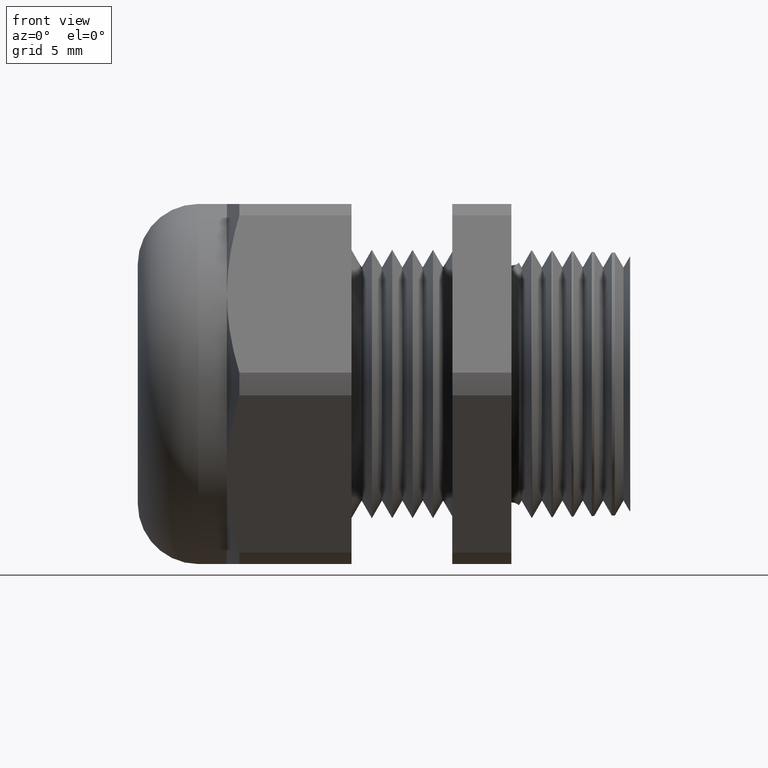
[diagram: clean part render]
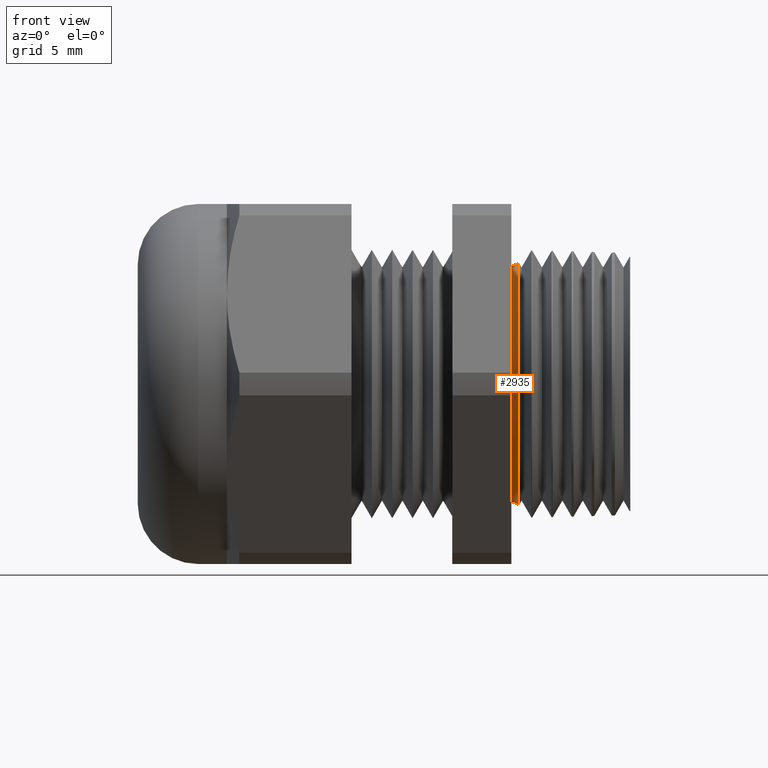
[diagram: same view with one face highlighted and labeled with its STEP entity id]
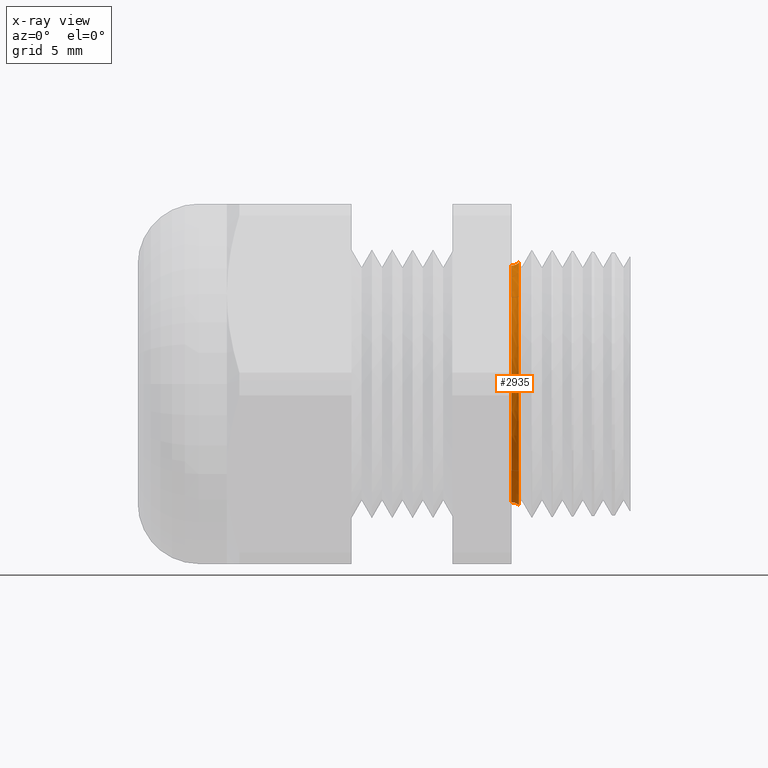
[diagram: x-ray of the same camera — body ghosted, the highlighted face saturated]
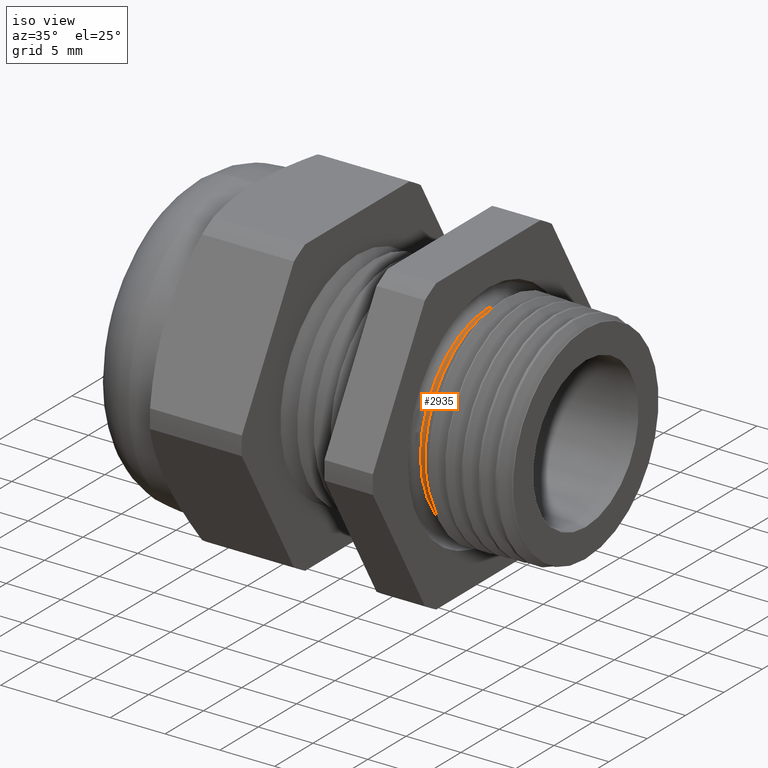
[diagram: same view with one face highlighted and labeled with its STEP entity id]
A machine part, front view. The second image highlights one B-rep face of the part: STEP entity #2935.
The next image is the same camera in x-ray: the body ghosted, the highlighted face saturated — about 0% of this face is hidden behind the body in this view.
A second angle (iso view) of the same face is appended — the face is thin or edge-on in the first view.
In plain terms, the highlighted toroidal blend (fillet) surface has major radius 9.6737 mm and minor (blend) radius 0.8255 mm.
Its self-contained STEP definition (entity closure, byte-faithful):
#1675 = CARTESIAN_POINT ( 'NONE',  ( 0.02198579858692063100, 4.371002984934417600E-017, -0.3569194798024769600 ) ) ;
#1676 = DIRECTION ( 'NONE',  ( 0.0000000000000000000, 0.0000000000000000000, 1.000000000000000000 ) ) ;
#1677 = DIRECTION ( 'NONE',  ( -1.000000000000000000, 0.0000000000000000000, 0.0000000000000000000 ) ) ;
#1678 = CARTESIAN_POINT ( 'NONE',  ( 0.02198579858692063100, 0.0000000000000000000, 0.0000000000000000000 ) ) ;
#1679 = AXIS2_PLACEMENT_3D ( 'NONE', #1678, #1677, #1676 ) ;
#1680 = CIRCLE ( 'NONE', #1679, 0.3569194798024769600 ) ;
#1681 = DIRECTION ( 'NONE',  ( 0.0000000000000000000, 0.0000000000000000000, 1.000000000000000000 ) ) ;
#1682 = DIRECTION ( 'NONE',  ( -1.000000000000000000, 0.0000000000000000000, 0.0000000000000000000 ) ) ;
#1683 = CARTESIAN_POINT ( 'NONE',  ( 3.980102097228894500E-018, 0.0000000000000000000, 0.0000000000000000000 ) ) ;
#1684 = AXIS2_PLACEMENT_3D ( 'NONE', #1683, #1682, #1681 ) ;
#1685 = CIRCLE ( 'NONE', #1684, 0.3483542800000000200 ) ;
#1686 = DIRECTION ( 'NONE',  ( 0.0000000000000000000, -1.224646799147353500E-016, 1.000000000000000000 ) ) ;
#1687 = DIRECTION ( 'NONE',  ( 0.0000000000000000000, 1.000000000000000000, 1.224646799147353200E-016 ) ) ;
#1688 = CARTESIAN_POINT ( 'NONE',  ( 0.0000000000000000000, 4.664119749435698700E-017, -0.3808542800000000500 ) ) ;
#1689 = AXIS2_PLACEMENT_3D ( 'NONE', #1688, #1687, #1686 ) ;
#1690 = CIRCLE ( 'NONE', #1689, 0.03249999999999999400 ) ;
#1691 = DIRECTION ( 'NONE',  ( 0.0000000000000000000, 0.0000000000000000000, 1.000000000000000000 ) ) ;
#1692 = DIRECTION ( 'NONE',  ( -1.000000000000000000, 0.0000000000000000000, 0.0000000000000000000 ) ) ;
#1693 = AXIS2_PLACEMENT_3D ( 'NONE', #1695, #1692, #1691 ) ;
#1694 = TOROIDAL_SURFACE ( 'NONE', #1693, 0.3808542800000000500, 0.03249999999999997300 ) ;
#1695 = CARTESIAN_POINT ( 'NONE',  ( 0.0000000000000000000, 0.0000000000000000000, 0.0000000000000000000 ) ) ;
#1696 = FACE_OUTER_BOUND ( 'NONE', #2933, .T. ) ;
#1767 = CARTESIAN_POINT ( 'NONE',  ( 0.02198579858692063100, 0.0000000000000000000, 0.3569194798024769600 ) ) ;
#1769 = DIRECTION ( 'NONE',  ( 0.0000000000000000000, 0.0000000000000000000, -1.000000000000000000 ) ) ;
#1770 = DIRECTION ( 'NONE',  ( 0.0000000000000000000, -1.000000000000000000, 0.0000000000000000000 ) ) ;
#1771 = CARTESIAN_POINT ( 'NONE',  ( 0.0000000000000000000, 0.0000000000000000000, 0.3808542800000000500 ) ) ;
#1772 = AXIS2_PLACEMENT_3D ( 'NONE', #1771, #1770, #1769 ) ;
#1773 = CIRCLE ( 'NONE', #1772, 0.03249999999999999400 ) ;
#2093 = CARTESIAN_POINT ( 'NONE',  ( 3.980102097228892200E-018, 0.0000000000000000000, 0.3483542800000000200 ) ) ;
#2099 = CARTESIAN_POINT ( 'NONE',  ( 3.980102097228892200E-018, 4.266109539712808500E-017, -0.3483542800000000200 ) ) ;
#2932 = ORIENTED_EDGE ( 'NONE', *, *, #2939, .T. ) ;
#2933 = EDGE_LOOP ( 'NONE', ( #2947, #2948, #2932, #2987 ) ) ;
#2935 = ADVANCED_FACE ( 'NONE', ( #1696 ), #1694, .F. ) ;
#2936 = EDGE_CURVE ( 'NONE', #3181, #2943, #1690, .T. ) ;
#2938 = EDGE_CURVE ( 'NONE', #3181, #3185, #1685, .T. ) ;
#2939 = EDGE_CURVE ( 'NONE', #2943, #2995, #1680, .T. ) ;
#2943 = VERTEX_POINT ( 'NONE', #1675 ) ;
#2947 = ORIENTED_EDGE ( 'NONE', *, *, #2938, .F. ) ;
#2948 = ORIENTED_EDGE ( 'NONE', *, *, #2936, .T. ) ;
#2987 = ORIENTED_EDGE ( 'NONE', *, *, #2991, .F. ) ;
#2991 = EDGE_CURVE ( 'NONE', #3185, #2995, #1773, .T. ) ;
#2995 = VERTEX_POINT ( 'NONE', #1767 ) ;
#3181 = VERTEX_POINT ( 'NONE', #2099 ) ;
#3185 = VERTEX_POINT ( 'NONE', #2093 ) ;